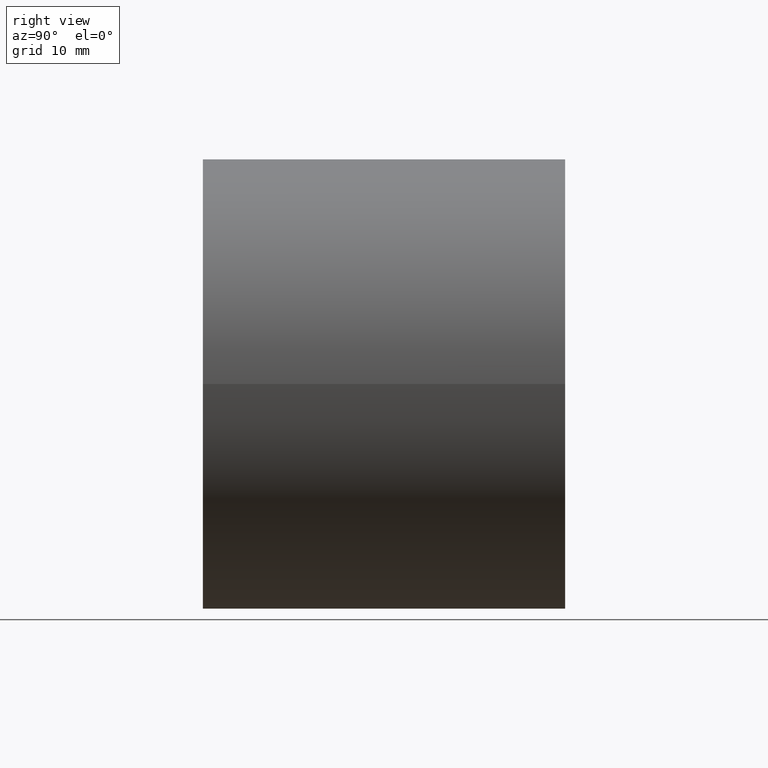
[diagram: clean part render]
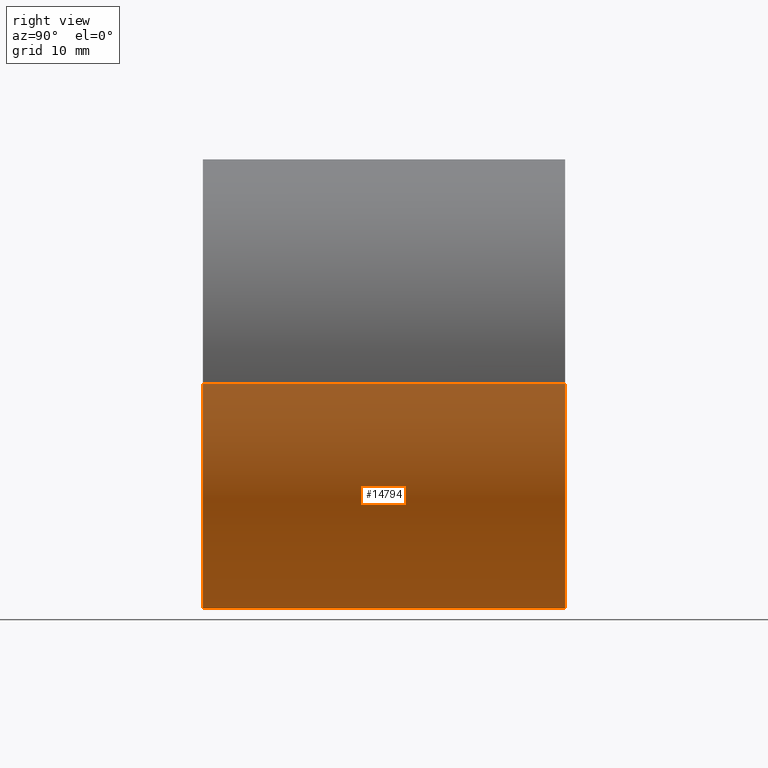
[diagram: same view with one face highlighted and labeled with its STEP entity id]
A machine part, right view. The second image highlights one B-rep face of the part: STEP entity #14794.
In plain terms, the highlighted cylindrical surface (partial cylindrical patch) has radius 31 mm, axis along (-0, 1, -0).
Its self-contained STEP definition (entity closure, byte-faithful):
#311 = EDGE_LOOP ( 'NONE', ( #3930, #1720, #12003, #10452 ) ) ;
#450 = FACE_OUTER_BOUND ( 'NONE', #311, .T. ) ;
#537 = CARTESIAN_POINT ( 'NONE',  ( -7.703719777548943412E-31, 6.938893903907228378E-15, 0.000000000000000000 ) ) ;
#1483 = CARTESIAN_POINT ( 'NONE',  ( 31.00000000000000000, 1.124100812432970997E-14, 3.796405077356795904E-15 ) ) ;
#1720 = ORIENTED_EDGE ( 'NONE', *, *, #4979, .T. ) ;
#2066 = CARTESIAN_POINT ( 'NONE',  ( -6.938893903907228378E-15, 50.00000000000000000, 0.000000000000000000 ) ) ;
#2663 = CARTESIAN_POINT ( 'NONE',  ( -6.938893903907228378E-15, 50.00000000000000711, 0.000000000000000000 ) ) ;
#2930 = CIRCLE ( 'NONE', #2937, 31.00000000000001066 ) ;
#2937 = AXIS2_PLACEMENT_3D ( 'NONE', #2663, #9403, #10718 ) ;
#3285 = LINE ( 'NONE', #7096, #5628 ) ;
#3893 = CARTESIAN_POINT ( 'NONE',  ( -31.00000000000001776, 50.00000000000000000, 0.000000000000000000 ) ) ;
#3904 = VECTOR ( 'NONE', #9018, 1000.000000000000000 ) ;
#3930 = ORIENTED_EDGE ( 'NONE', *, *, #14772, .F. ) ;
#4727 = CARTESIAN_POINT ( 'NONE',  ( -31.00000000000000000, 2.636779683484746784E-15, 0.000000000000000000 ) ) ;
#4979 = EDGE_CURVE ( 'NONE', #5397, #13627, #11128, .T. ) ;
#5292 = CARTESIAN_POINT ( 'NONE',  ( 31.00000000000000711, 50.00000000000001421, 3.796405077356796693E-15 ) ) ;
#5397 = VERTEX_POINT ( 'NONE', #1483 ) ;
#5628 = VECTOR ( 'NONE', #10643, 1000.000000000000000 ) ;
#5680 = DIRECTION ( 'NONE',  ( -1.000000000000000000, -2.238352872228137677E-16, 0.000000000000000000 ) ) ;
#6230 = VERTEX_POINT ( 'NONE', #3893 ) ;
#6245 = CYLINDRICAL_SURFACE ( 'NONE', #13670, 31.00000000000000711 ) ;
#6671 = DIRECTION ( 'NONE',  ( -1.387778780781445676E-16, 1.000000000000000000, -0.000000000000000000 ) ) ;
#7096 = CARTESIAN_POINT ( 'NONE',  ( -31.00000000000001421, 49.99999999999999289, 0.000000000000000000 ) ) ;
#7335 = EDGE_CURVE ( 'NONE', #12689, #6230, #2930, .T. ) ;
#7453 = DIRECTION ( 'NONE',  ( -1.000000000000000000, -1.387778780781445676E-16, 0.000000000000000000 ) ) ;
#7534 = EDGE_CURVE ( 'NONE', #13627, #6230, #3285, .T. ) ;
#9018 = DIRECTION ( 'NONE',  ( -1.387778780781445676E-16, 1.000000000000000000, -0.000000000000000000 ) ) ;
#9173 = LINE ( 'NONE', #12667, #3904 ) ;
#9403 = DIRECTION ( 'NONE',  ( -1.387778780781445676E-16, 1.000000000000000000, -0.000000000000000000 ) ) ;
#9682 = DIRECTION ( 'NONE',  ( -1.387778780781445676E-16, 1.000000000000000000, -0.000000000000000000 ) ) ;
#10452 = ORIENTED_EDGE ( 'NONE', *, *, #7335, .F. ) ;
#10643 = DIRECTION ( 'NONE',  ( -1.387778780781445676E-16, 1.000000000000000000, -0.000000000000000000 ) ) ;
#10718 = DIRECTION ( 'NONE',  ( -1.000000000000000000, -2.238352872228137184E-16, 0.000000000000000000 ) ) ;
#11128 = CIRCLE ( 'NONE', #13141, 31.00000000000000000 ) ;
#12003 = ORIENTED_EDGE ( 'NONE', *, *, #7534, .T. ) ;
#12667 = CARTESIAN_POINT ( 'NONE',  ( 31.00000000000000000, 50.00000000000000711, 3.796405077356795904E-15 ) ) ;
#12689 = VERTEX_POINT ( 'NONE', #5292 ) ;
#13141 = AXIS2_PLACEMENT_3D ( 'NONE', #537, #9682, #7453 ) ;
#13627 = VERTEX_POINT ( 'NONE', #4727 ) ;
#13670 = AXIS2_PLACEMENT_3D ( 'NONE', #2066, #6671, #5680 ) ;
#14772 = EDGE_CURVE ( 'NONE', #5397, #12689, #9173, .T. ) ;
#14794 = ADVANCED_FACE ( 'NONE', ( #450 ), #6245, .T. ) ;